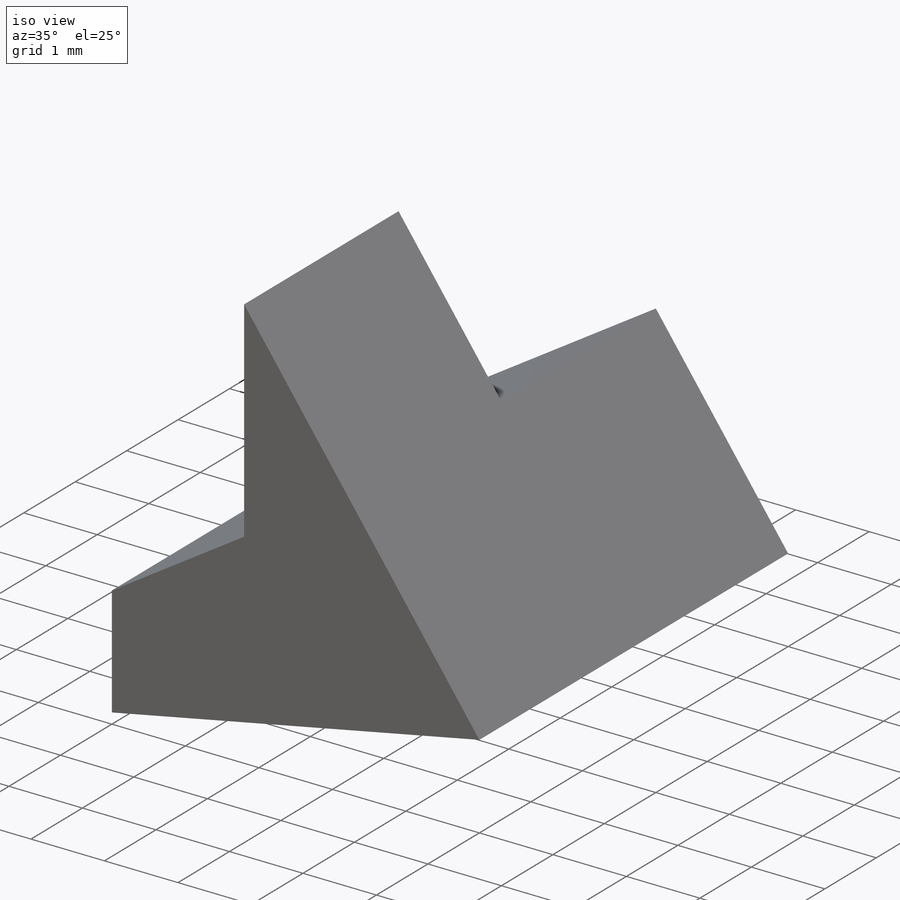
[diagram: iso view]
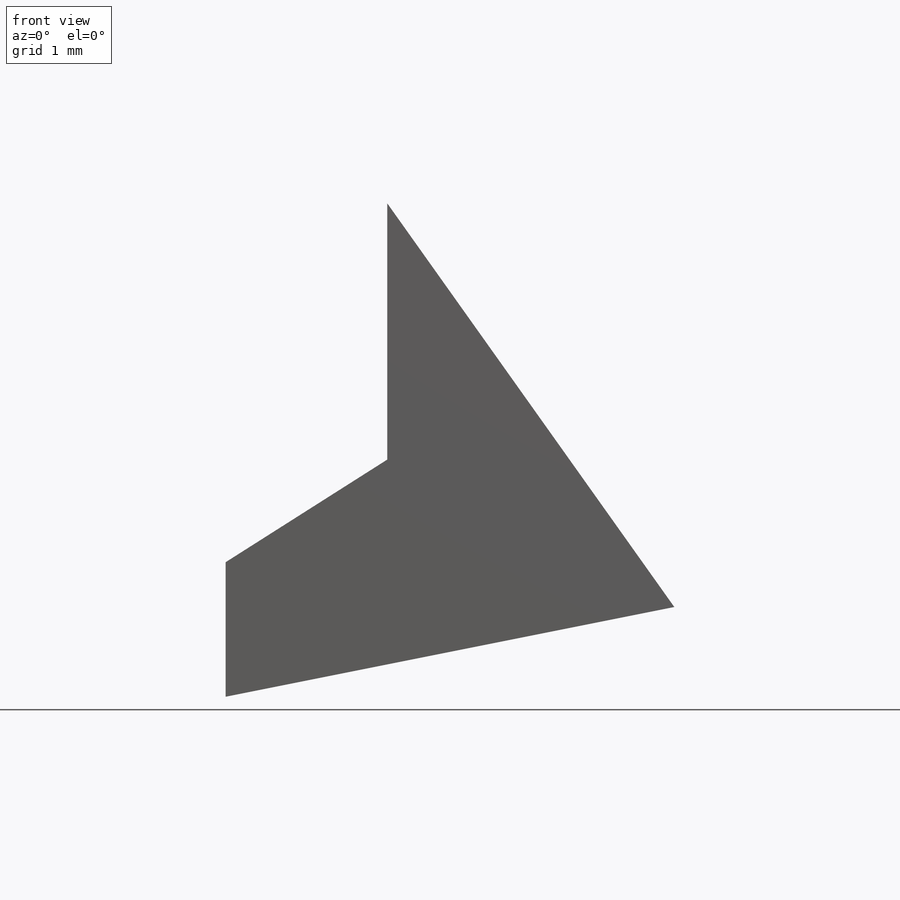
[diagram: front view]
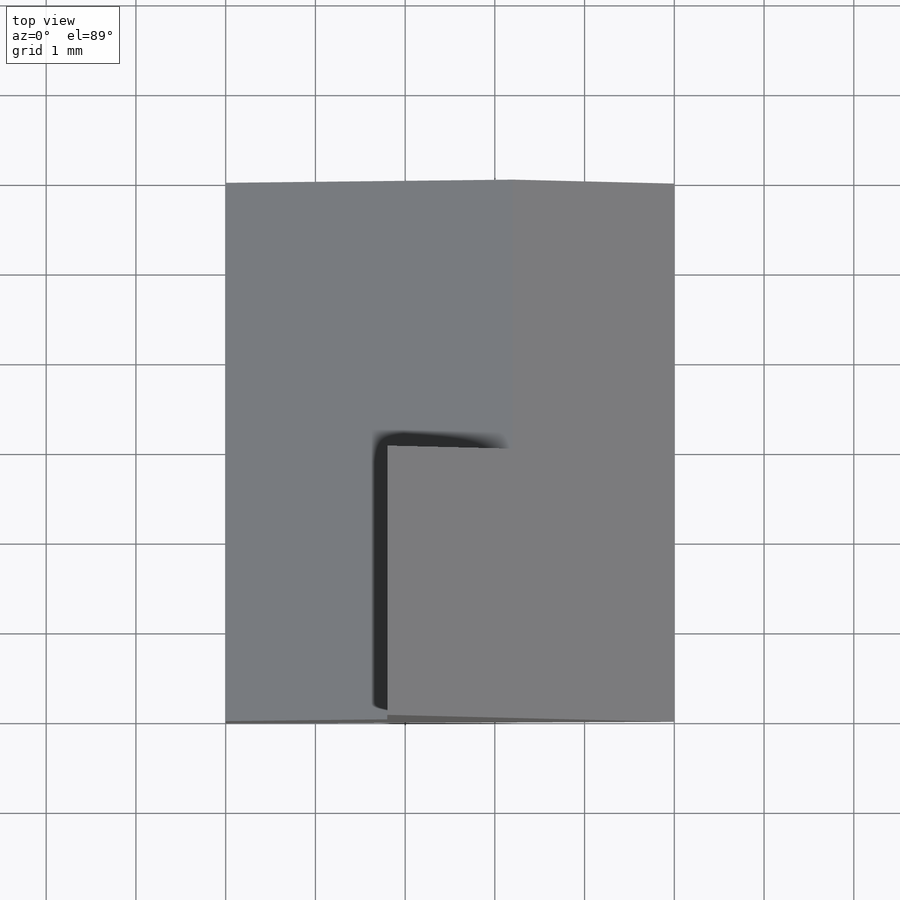
[diagram: top view]
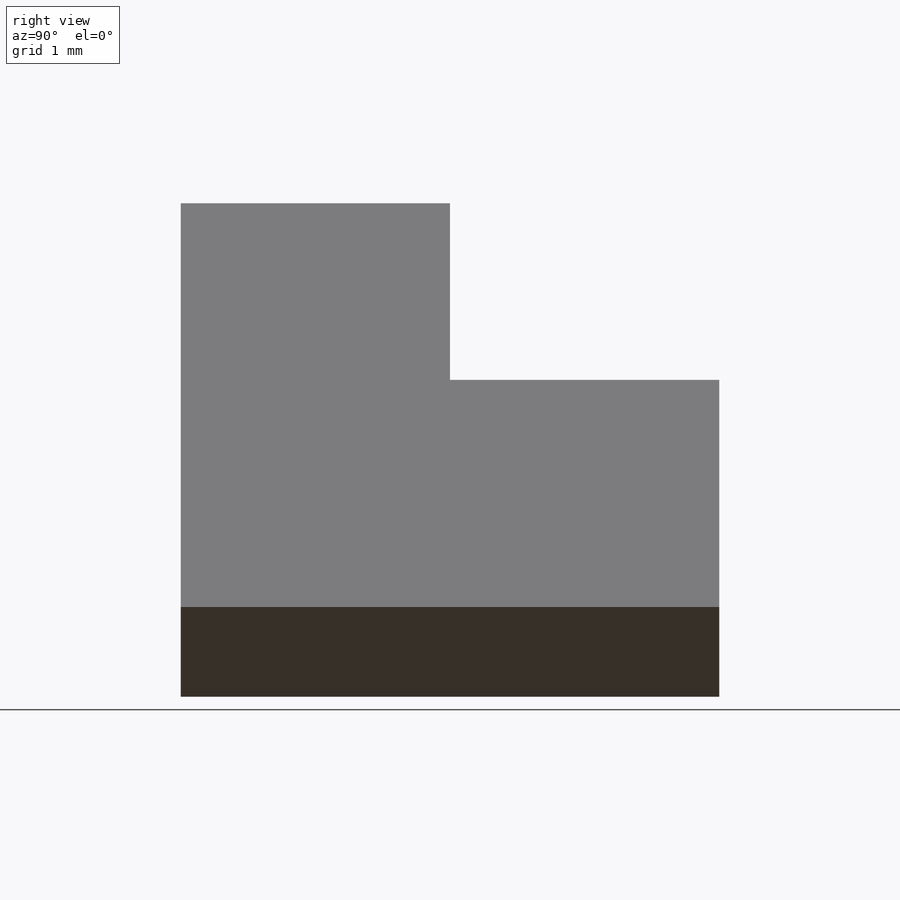
[diagram: right view]
SOLIDWORKS PART (.sldprt)
format: sldprt  version: not decoded by parser v0  size: 147,968 bytes
history: native  units: mm
features: sketch x4, extrude x4, material x1 (+13 scaffold rows collapsed)
feature tree (22):
  scaffold x13  (default folders/planes/origin — collapsed)
  material  "Material <not specified>"
  sketch  "Sketch1"  dims[c1.D1=1.0mm c1.D2=5.0mm c1.D3=4.0mm c1.D4=3.0mm c1.D5=1.5mm c2.D4=3.2mm]
  extrude  "Boss-Extrude1"  Depth=3mm
  sketch  "Sketch2"  dims[c1.D1=~1.857822mm c2.D1=90.0deg c3.D1=3.2mm]
  extrude  "Boss-Extrude2"  Depth=3mm
  sketch  "Sketch3"
  extrude  "Boss-Extrude3"  Depth=3mm
  sketch  "Sketch4"
  extrude  "Boss-Extrude4"  Depth=3mm
decode coverage: 6 of 8 modeling features carry decoded parameters
note: ~ marks probable driven/reference dimensions
note: suppression state not decoded; provenance and decode notes live in map.json
